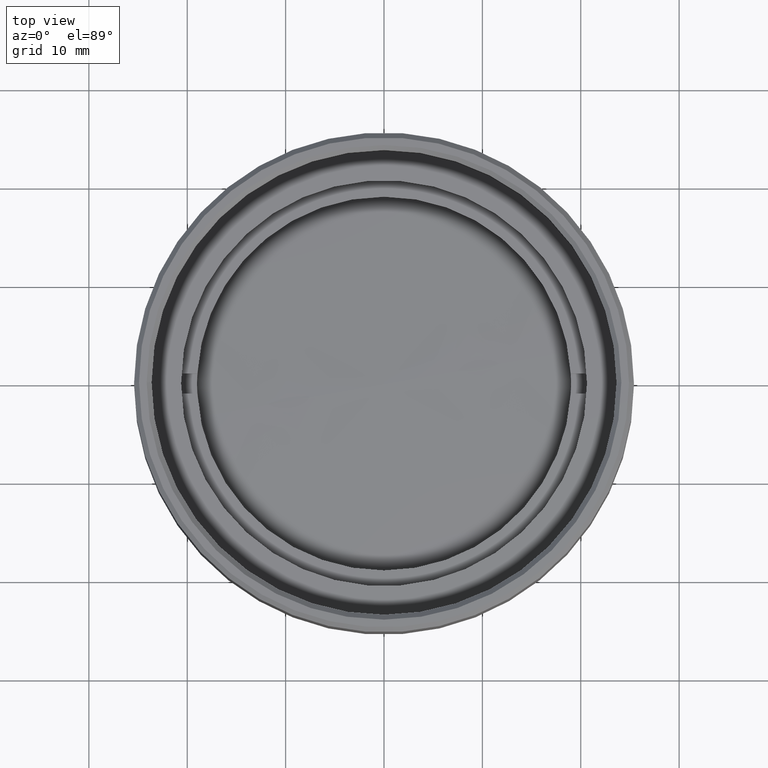
[diagram: clean part render]
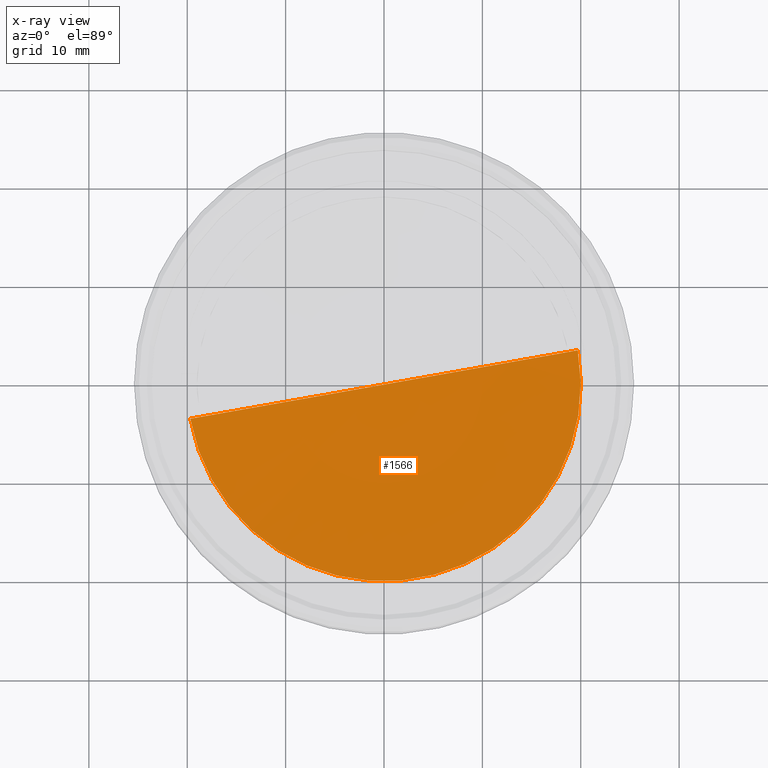
[diagram: x-ray — body ghosted, one internal face saturated and labeled with its STEP entity id]
A machine part, top view, then the same camera in x-ray: the body is ghosted and one INTERNAL B-rep face — a face not visible from any outside direction — is saturated and labeled: STEP entity #1566.
In plain terms, the highlighted spherical surface has radius 506.69 mm.
Its self-contained STEP definition (entity closure, byte-faithful):
#62 = CARTESIAN_POINT ( 'NONE',  ( 0.000000000000000000, 0.000000000000000000, -3.605127470134749768 ) ) ;
#69 = DIRECTION ( 'NONE',  ( 0.000000000000000000, 0.000000000000000000, 1.000000000000000000 ) ) ;
#172 = CARTESIAN_POINT ( 'NONE',  ( 0.000000000000000000, 0.000000000000000000, 502.6899999999999977 ) ) ;
#316 = SPHERICAL_SURFACE ( 'NONE', #1870, 506.6899999999999977 ) ;
#379 = DIRECTION ( 'NONE',  ( 0.000000000000000000, 0.000000000000000000, 1.000000000000000000 ) ) ;
#451 = AXIS2_PLACEMENT_3D ( 'NONE', #62, #379, #774 ) ;
#504 = DIRECTION ( 'NONE',  ( 0.000000000000000000, 1.000000000000000000, 0.000000000000000000 ) ) ;
#613 = DIRECTION ( 'NONE',  ( -1.000000000000000000, 0.000000000000000000, 0.000000000000000000 ) ) ;
#630 = CIRCLE ( 'NONE', #1647, 506.6899999999999977 ) ;
#774 = DIRECTION ( 'NONE',  ( 1.000000000000000000, 0.000000000000000000, 0.000000000000000000 ) ) ;
#837 = ORIENTED_EDGE ( 'NONE', *, *, #953, .T. ) ;
#845 = EDGE_LOOP ( 'NONE', ( #1048, #837 ) ) ;
#874 = EDGE_CURVE ( 'NONE', #1589, #1228, #1058, .T. ) ;
#953 = EDGE_CURVE ( 'NONE', #1228, #1589, #630, .T. ) ;
#1018 = CARTESIAN_POINT ( 'NONE',  ( 20.00000000000000000, -2.449293598294729784E-15, -3.605127470134749768 ) ) ;
#1048 = ORIENTED_EDGE ( 'NONE', *, *, #874, .T. ) ;
#1058 = CIRCLE ( 'NONE', #451, 20.00000000000000000 ) ;
#1228 = VERTEX_POINT ( 'NONE', #1018 ) ;
#1351 = DIRECTION ( 'NONE',  ( -0.000000000000000000, -0.000000000000000000, -1.000000000000000000 ) ) ;
#1543 = CARTESIAN_POINT ( 'NONE',  ( 0.000000000000000000, 0.000000000000000000, 502.6899999999999977 ) ) ;
#1566 = ADVANCED_FACE ( 'NONE', ( #1779 ), #316, .F. ) ;
#1589 = VERTEX_POINT ( 'NONE', #1688 ) ;
#1647 = AXIS2_PLACEMENT_3D ( 'NONE', #1543, #504, #69 ) ;
#1688 = CARTESIAN_POINT ( 'NONE',  ( -20.00000000000000000, 0.000000000000000000, -3.605127470134749768 ) ) ;
#1779 = FACE_OUTER_BOUND ( 'NONE', #845, .T. ) ;
#1870 = AXIS2_PLACEMENT_3D ( 'NONE', #172, #1351, #613 ) ;